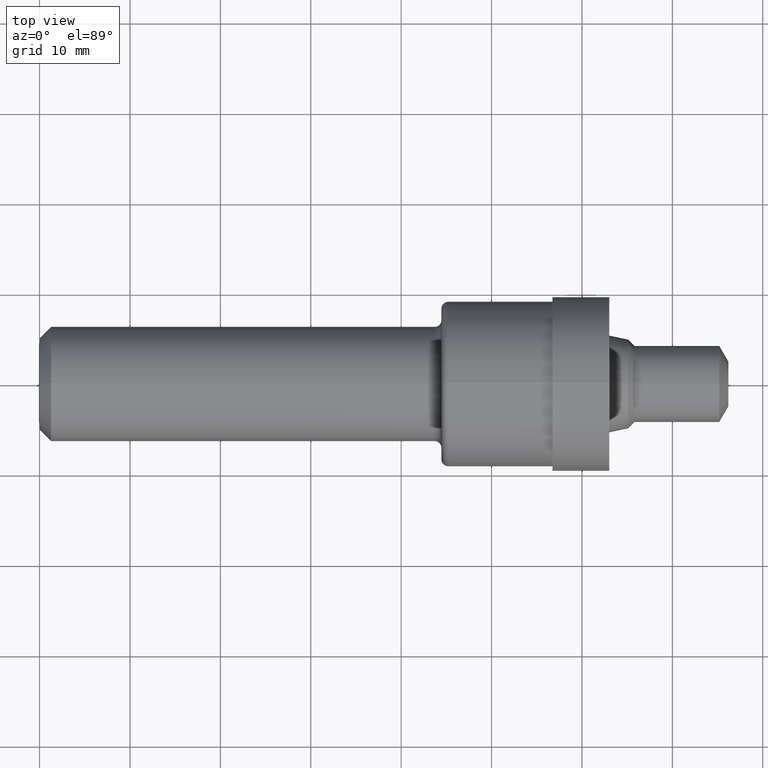
[diagram: clean part render]
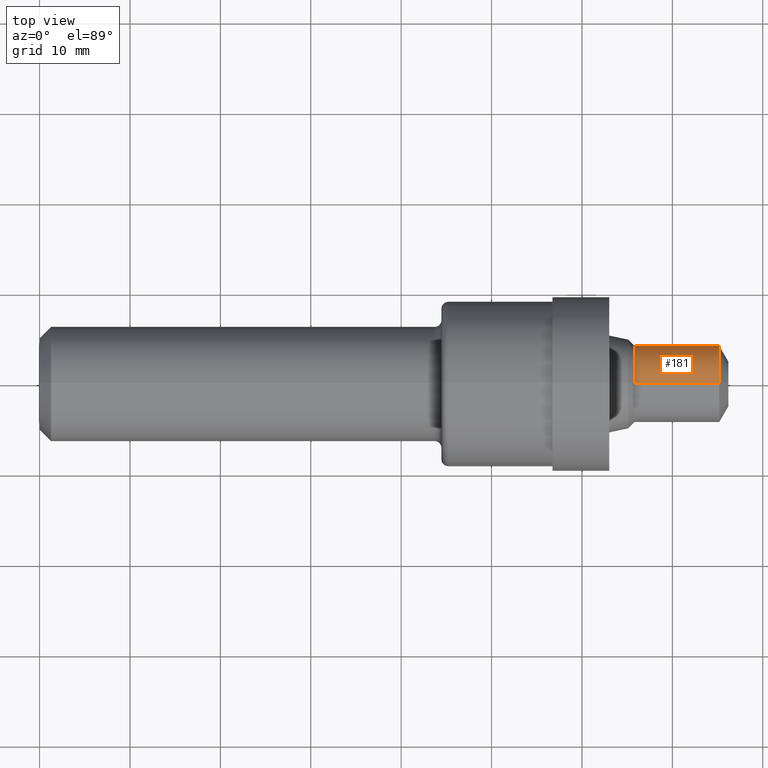
[diagram: same view with one face highlighted and labeled with its STEP entity id]
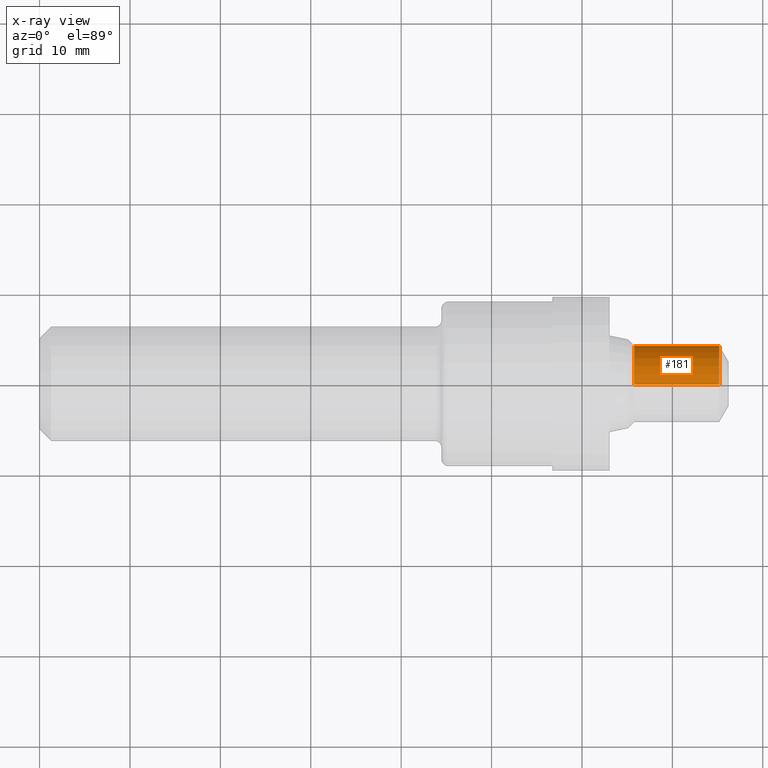
[diagram: x-ray of the same camera — body ghosted, the highlighted face saturated]
A machine part, top view. The second image highlights one B-rep face of the part: STEP entity #181.
The next image is the same camera in x-ray: the body ghosted, the highlighted face saturated — about 0% of this face is hidden behind the body in this view.
In plain terms, the highlighted cylindrical surface (partial cylindrical patch) has radius 4.2291 mm, axis along (-1, -0, -0).
Its self-contained STEP definition (entity closure, byte-faithful):
#18 = ORIENTED_EDGE ( 'NONE', *, *, #539, .F. ) ;
#26 = EDGE_CURVE ( 'NONE', #600, #108, #129, .T. ) ;
#56 = CIRCLE ( 'NONE', #587, 0.1665000000000000100 ) ;
#63 = CARTESIAN_POINT ( 'NONE',  ( 2.590820361943058100, 2.209387506603778400E-017, -0.1665000000000000100 ) ) ;
#64 = DIRECTION ( 'NONE',  ( -1.000000000000000000, -0.0000000000000000000, -0.0000000000000000000 ) ) ;
#76 = CARTESIAN_POINT ( 'NONE',  ( 0.0000000000000000000, 0.0000000000000000000, 0.1665000000000000100 ) ) ;
#93 = DIRECTION ( 'NONE',  ( -1.000000000000000000, -0.0000000000000000000, -0.0000000000000000000 ) ) ;
#108 = VERTEX_POINT ( 'NONE', #555 ) ;
#129 = LINE ( 'NONE', #76, #396 ) ;
#172 = EDGE_CURVE ( 'NONE', #600, #365, #231, .T. ) ;
#181 = ADVANCED_FACE ( 'NONE', ( #485 ), #183, .T. ) ;
#183 = CYLINDRICAL_SURFACE ( 'NONE', #691, 0.1665000000000000100 ) ;
#213 = DIRECTION ( 'NONE',  ( 0.0000000000000000000, 0.0000000000000000000, 1.000000000000000000 ) ) ;
#223 = VERTEX_POINT ( 'NONE', #63 ) ;
#231 = CIRCLE ( 'NONE', #516, 0.1665000000000000100 ) ;
#266 = CARTESIAN_POINT ( 'NONE',  ( 2.590820361943058100, 0.0000000000000000000, 0.0000000000000000000 ) ) ;
#287 = DIRECTION ( 'NONE',  ( -1.000000000000000000, -0.0000000000000000000, -0.0000000000000000000 ) ) ;
#327 = CARTESIAN_POINT ( 'NONE',  ( 2.960000000000000000, 0.0000000000000000000, 0.1665000000000000100 ) ) ;
#338 = DIRECTION ( 'NONE',  ( 0.0000000000000000000, 0.0000000000000000000, 1.000000000000000000 ) ) ;
#365 = VERTEX_POINT ( 'NONE', #565 ) ;
#394 = DIRECTION ( 'NONE',  ( -1.000000000000000000, -0.0000000000000000000, -0.0000000000000000000 ) ) ;
#396 = VECTOR ( 'NONE', #287, 39.37007874015748100 ) ;
#398 = CARTESIAN_POINT ( 'NONE',  ( 2.960000000000000000, 0.0000000000000000000, 0.0000000000000000000 ) ) ;
#426 = EDGE_CURVE ( 'NONE', #365, #223, #693, .T. ) ;
#433 = EDGE_LOOP ( 'NONE', ( #534, #685, #18, #548 ) ) ;
#450 = DIRECTION ( 'NONE',  ( 0.0000000000000000000, 0.0000000000000000000, 1.000000000000000000 ) ) ;
#466 = CARTESIAN_POINT ( 'NONE',  ( 0.0000000000000000000, 2.039036920580343200E-017, -0.1665000000000000100 ) ) ;
#485 = FACE_OUTER_BOUND ( 'NONE', #433, .T. ) ;
#516 = AXIS2_PLACEMENT_3D ( 'NONE', #398, #394, #338 ) ;
#534 = ORIENTED_EDGE ( 'NONE', *, *, #172, .T. ) ;
#539 = EDGE_CURVE ( 'NONE', #108, #223, #56, .T. ) ;
#548 = ORIENTED_EDGE ( 'NONE', *, *, #26, .F. ) ;
#553 = VECTOR ( 'NONE', #93, 39.37007874015748100 ) ;
#555 = CARTESIAN_POINT ( 'NONE',  ( 2.590820361943058100, 0.0000000000000000000, 0.1665000000000000100 ) ) ;
#565 = CARTESIAN_POINT ( 'NONE',  ( 2.960000000000000000, 2.039036920580343200E-017, -0.1665000000000000100 ) ) ;
#587 = AXIS2_PLACEMENT_3D ( 'NONE', #266, #647, #213 ) ;
#600 = VERTEX_POINT ( 'NONE', #327 ) ;
#645 = CARTESIAN_POINT ( 'NONE',  ( 0.0000000000000000000, 0.0000000000000000000, 0.0000000000000000000 ) ) ;
#647 = DIRECTION ( 'NONE',  ( -1.000000000000000000, -0.0000000000000000000, -0.0000000000000000000 ) ) ;
#685 = ORIENTED_EDGE ( 'NONE', *, *, #426, .T. ) ;
#691 = AXIS2_PLACEMENT_3D ( 'NONE', #645, #64, #450 ) ;
#693 = LINE ( 'NONE', #466, #553 ) ;